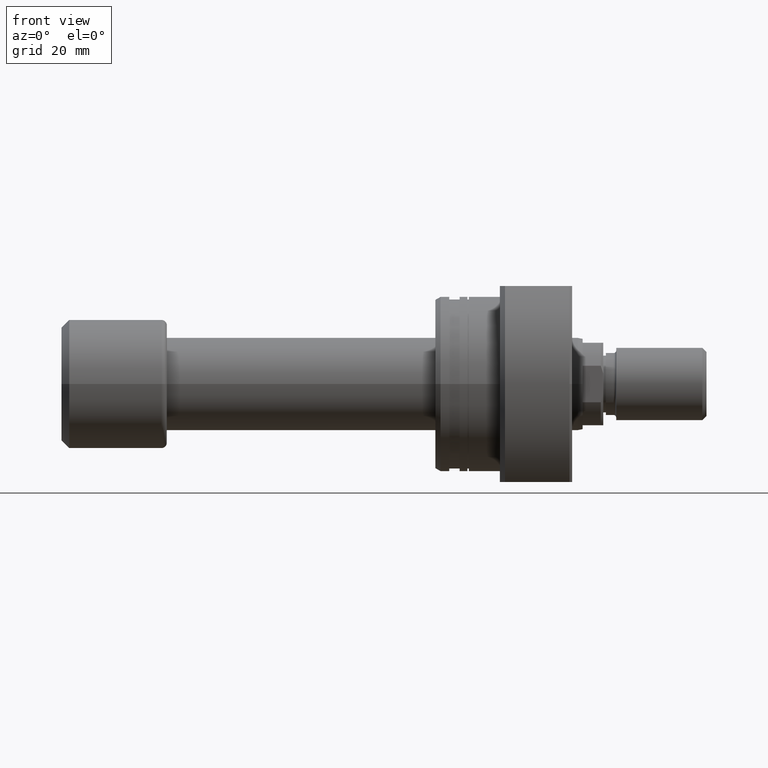
[diagram: clean part render]
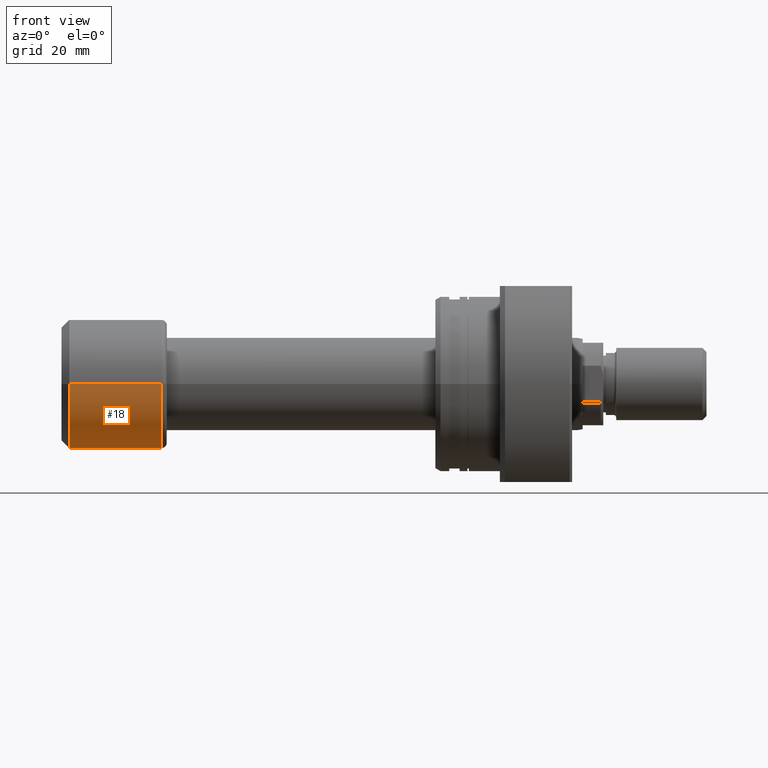
[diagram: same view with one face highlighted and labeled with its STEP entity id]
A machine part, front view. The second image highlights one B-rep face of the part: STEP entity #18.
In plain terms, the highlighted cylindrical surface (partial cylindrical patch) has radius 12.5 mm, axis along (-1, -0, -0).
Its self-contained STEP definition (entity closure, byte-faithful):
#18 = ADVANCED_FACE ( 'NONE', ( #1729 ), #2501, .T. ) ;
#55 = CARTESIAN_POINT ( 'NONE',  ( 19.39999999999999503, -12.50000000000000000, 0.000000000000000000 ) ) ;
#187 = ORIENTED_EDGE ( 'NONE', *, *, #1836, .T. ) ;
#234 = EDGE_LOOP ( 'NONE', ( #471, #3332, #187, #771 ) ) ;
#466 = CARTESIAN_POINT ( 'NONE',  ( 19.39999999999999503, 2.074912104813986935E-16, 0.000000000000000000 ) ) ;
#467 = DIRECTION ( 'NONE',  ( -1.000000000000000000, -1.069542322069065801E-17, -0.000000000000000000 ) ) ;
#471 = ORIENTED_EDGE ( 'NONE', *, *, #1715, .F. ) ;
#481 = AXIS2_PLACEMENT_3D ( 'NONE', #3073, #2224, #1388 ) ;
#620 = VECTOR ( 'NONE', #1609, 1000.000000000000000 ) ;
#771 = ORIENTED_EDGE ( 'NONE', *, *, #2262, .F. ) ;
#807 = CARTESIAN_POINT ( 'NONE',  ( 1.500000000000001554, 1.604313483103600319E-17, 0.000000000000000000 ) ) ;
#1147 = AXIS2_PLACEMENT_3D ( 'NONE', #807, #467, #3174 ) ;
#1152 = CIRCLE ( 'NONE', #1873, 12.50000000000000000 ) ;
#1258 = VERTEX_POINT ( 'NONE', #1290 ) ;
#1269 = CIRCLE ( 'NONE', #1147, 12.50000000000000000 ) ;
#1290 = CARTESIAN_POINT ( 'NONE',  ( 1.500000000000001332, 12.50000000000000000, 0.000000000000000000 ) ) ;
#1388 = DIRECTION ( 'NONE',  ( 1.069542322069065955E-17, -1.000000000000000000, 0.000000000000000000 ) ) ;
#1609 = DIRECTION ( 'NONE',  ( -1.000000000000000000, -1.069542322069065801E-17, -0.000000000000000000 ) ) ;
#1715 = EDGE_CURVE ( 'NONE', #2376, #1258, #2937, .T. ) ;
#1729 = FACE_OUTER_BOUND ( 'NONE', #234, .T. ) ;
#1756 = VECTOR ( 'NONE', #3261, 1000.000000000000000 ) ;
#1772 = LINE ( 'NONE', #2909, #1756 ) ;
#1836 = EDGE_CURVE ( 'NONE', #2889, #2320, #1772, .T. ) ;
#1873 = AXIS2_PLACEMENT_3D ( 'NONE', #466, #1960, #2000 ) ;
#1891 = CARTESIAN_POINT ( 'NONE',  ( 19.39999999999999503, 12.50000000000000000, 1.530808498934191521E-15 ) ) ;
#1946 = CARTESIAN_POINT ( 'NONE',  ( 1.500000000000001776, -12.50000000000000000, 1.530808498934191521E-15 ) ) ;
#1960 = DIRECTION ( 'NONE',  ( -1.000000000000000000, -1.069542322069065801E-17, -0.000000000000000000 ) ) ;
#2000 = DIRECTION ( 'NONE',  ( 0.000000000000000000, -1.000000000000000000, 0.000000000000000000 ) ) ;
#2040 = CARTESIAN_POINT ( 'NONE',  ( -1.336927902586332490E-16, 12.50000000000000000, 1.530808498934191521E-15 ) ) ;
#2224 = DIRECTION ( 'NONE',  ( -1.000000000000000000, -1.069542322069065801E-17, -0.000000000000000000 ) ) ;
#2262 = EDGE_CURVE ( 'NONE', #1258, #2320, #1269, .T. ) ;
#2320 = VERTEX_POINT ( 'NONE', #1946 ) ;
#2376 = VERTEX_POINT ( 'NONE', #1891 ) ;
#2501 = CYLINDRICAL_SURFACE ( 'NONE', #481, 12.50000000000000000 ) ;
#2699 = EDGE_CURVE ( 'NONE', #2376, #2889, #1152, .T. ) ;
#2889 = VERTEX_POINT ( 'NONE', #55 ) ;
#2909 = CARTESIAN_POINT ( 'NONE',  ( 1.336927902586332490E-16, -12.50000000000000000, 0.000000000000000000 ) ) ;
#2937 = LINE ( 'NONE', #2040, #620 ) ;
#3073 = CARTESIAN_POINT ( 'NONE',  ( 0.000000000000000000, 0.000000000000000000, 0.000000000000000000 ) ) ;
#3174 = DIRECTION ( 'NONE',  ( 1.734723475976807094E-17, -1.000000000000000000, 0.000000000000000000 ) ) ;
#3261 = DIRECTION ( 'NONE',  ( -1.000000000000000000, -1.069542322069065801E-17, -0.000000000000000000 ) ) ;
#3332 = ORIENTED_EDGE ( 'NONE', *, *, #2699, .T. ) ;